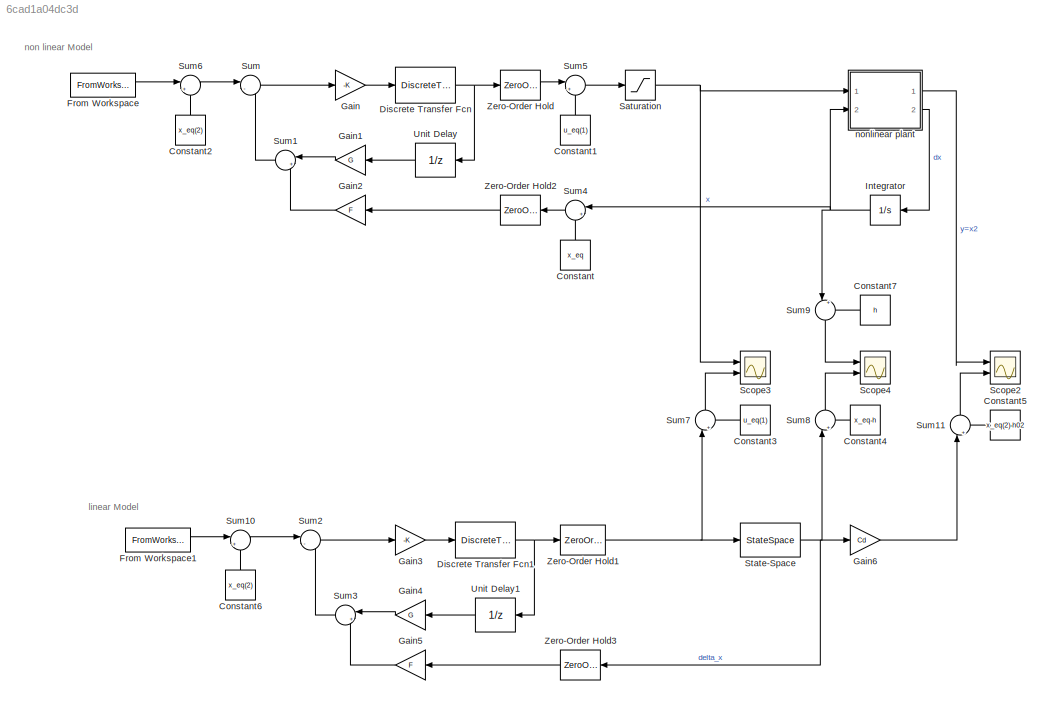
MODEL slx_6cad1a04dc3d
KIND model
CONFIG AbsTol = auto
CONFIG EnableMultiTasking = off
CONFIG FixedStep = auto
CONFIG MaxStep = auto
CONFIG MinStep = auto
CONFIG RelTol = 1e-3
CONFIG SampleTimeConstraint = Unconstrained
CONFIG Solver = VariableStepAuto
CONFIG SolverName = VariableStepAuto
CONFIG StartTime = 0.0
CONFIG StopTime = 50
BLOCK [Constant] Constant
  Value = x_eq
BLOCK [Constant] Constant1
  Value = u_eq(1)
BLOCK [Constant] Constant2
  Value = x_eq(2)
BLOCK [Constant] Constant3
  Value = u_eq(1)
BLOCK [Constant] Constant4
  Value = x_eq-h
BLOCK [Constant] Constant5
  Value = x_eq(2)-h02
BLOCK [Constant] Constant6
  Value = x_eq(2)
BLOCK [Constant] Constant7
  Value = h
BLOCK [DiscreteTransferFcn] Discrete Transfer Fcn
  Denominator = [1 -1]
  InputPortMap = u0
  Numerator = [1 0]
  Ports = [1, 1]
  SampleTime = Ts
BLOCK [DiscreteTransferFcn] Discrete Transfer Fcn1
  Denominator = [1 -1]
  InputPortMap = u0
  Numerator = [1 0]
  Ports = [1, 1]
  SampleTime = Ts
BLOCK [FromWorkspace] From Workspace
  SampleTime = 0
  VariableName = r
  ZeroCross = on
BLOCK [FromWorkspace] From Workspace1
  SampleTime = 0
  VariableName = r
  ZeroCross = on
BLOCK [Gain] Gain
  Gain = -K
  Multiplication = Matrix(K*u)
  OutDataTypeStr = Inherit: Inherit via internal rule
  ParamDataTypeStr = Inherit: Inherit via internal rule
  SaturateOnIntegerOverflow = off
BLOCK [Gain] Gain1
  Gain = G
  Multiplication = Matrix(K*u)
  OutDataTypeStr = Inherit: Inherit via internal rule
  ParamDataTypeStr = Inherit: Inherit via internal rule
  SaturateOnIntegerOverflow = off
BLOCK [Gain] Gain2
  Gain = F
  Multiplication = Matrix(K*u)
  OutDataTypeStr = Inherit: Inherit via internal rule
  ParamDataTypeStr = Inherit: Inherit via internal rule
  SaturateOnIntegerOverflow = off
BLOCK [Gain] Gain3
  Gain = -K
  Multiplication = Matrix(K*u)
  OutDataTypeStr = Inherit: Inherit via internal rule
  ParamDataTypeStr = Inherit: Inherit via internal rule
  SaturateOnIntegerOverflow = off
BLOCK [Gain] Gain4
  Gain = G
  Multiplication = Matrix(K*u)
  OutDataTypeStr = Inherit: Inherit via internal rule
  ParamDataTypeStr = Inherit: Inherit via internal rule
  SaturateOnIntegerOverflow = off
BLOCK [Gain] Gain5
  Gain = F
  Multiplication = Matrix(K*u)
  OutDataTypeStr = Inherit: Inherit via internal rule
  ParamDataTypeStr = Inherit: Inherit via internal rule
  SaturateOnIntegerOverflow = off
BLOCK [Gain] Gain6
  Gain = Cd
  Multiplication = Matrix(K*u)
  OutDataTypeStr = Inherit: Inherit via internal rule
  ParamDataTypeStr = Inherit: Inherit via internal rule
  SaturateOnIntegerOverflow = off
BLOCK [Integrator] Integrator
  InitialCondition = x0_nonlin
  Ports = [1, 1]
BLOCK [Saturate] Saturation
  InputPortMap = u0
  LowerLimit = u_lower_limit
  Ports = [1, 1]
  UpperLimit = u_upper_limit
BLOCK [Scope] Scope2
  Floating = off
  NumInputPorts = 2
  Ports = [2]
  ScopeSpecificationString = Simulink.scopes.TimeScopeBlockCfg('CurrentConfiguration', extmgr.ConfigurationSet(extmgr.Configuration('Core','General UI',true),extmgr.Configuration('Core','Source UI',true),extmgr.Configuration('Sources','WiredSimulink',true,'DataLoggingVariableName','ScopeData1'),extmgr.Configuration('Visuals','Time Domain',true,'SerializedDisplays',{struct('MinYLimReal','3.61123','MaxYLimReal','17.49894','YLab...<+1545ch>
BLOCK [Scope] Scope3
  Floating = off
  NumInputPorts = 2
  Ports = [2]
  ScopeSpecificationString = Simulink.scopes.TimeScopeBlockCfg('CurrentConfiguration', extmgr.ConfigurationSet(extmgr.Configuration('Core','General UI',true),extmgr.Configuration('Core','Source UI',true),extmgr.Configuration('Sources','WiredSimulink',true,'DataLoggingVariableName','ScopeData2'),extmgr.Configuration('Visuals','Time Domain',true,'SerializedDisplays',{struct('MinYLimReal','-8.41092','MaxYLimReal','19.15945','YLa...<+1521ch>
BLOCK [Scope] Scope4
  Floating = off
  NumInputPorts = 2
  Ports = [2]
  ScopeSpecificationString = Simulink.scopes.TimeScopeBlockCfg('CurrentConfiguration', extmgr.ConfigurationSet(extmgr.Configuration('Core','General UI',true),extmgr.Configuration('Core','Source UI',true),extmgr.Configuration('Sources','WiredSimulink',true,'DataLoggingVariableName','ScopeData3'),extmgr.Configuration('Visuals','Time Domain',true,'SerializedDisplays',{struct('MinYLimReal','14.9587','MaxYLimReal','15.01916','YLab...<+1674ch>
BLOCK [StateSpace] State-Space
  A = A
  B = B
  C = eye(n)
  D = [0;0]
  InitialCondition = x0_linear
  Ports = [1, 1]
BLOCK [Sum] Sum
  IconShape = round
  InputSameDT = off
  Inputs = |-+
  OutDataTypeStr = Inherit: Inherit via internal rule
  Ports = [2, 1]
  SaturateOnIntegerOverflow = off
BLOCK [Sum] Sum1
  IconShape = round
  InputSameDT = off
  Inputs = |++
  OutDataTypeStr = Inherit: Inherit via internal rule
  Ports = [2, 1]
  SaturateOnIntegerOverflow = off
BLOCK [Sum] Sum10
  IconShape = round
  InputSameDT = off
  Inputs = |+-
  OutDataTypeStr = Inherit: Inherit via internal rule
  Ports = [2, 1]
  SaturateOnIntegerOverflow = off
BLOCK [Sum] Sum11
  IconShape = round
  InputSameDT = off
  Inputs = |++
  OutDataTypeStr = Inherit: Inherit via internal rule
  Ports = [2, 1]
  SaturateOnIntegerOverflow = off
BLOCK [Sum] Sum2
  IconShape = round
  InputSameDT = off
  Inputs = |-+
  OutDataTypeStr = Inherit: Inherit via internal rule
  Ports = [2, 1]
  SaturateOnIntegerOverflow = off
BLOCK [Sum] Sum3
  IconShape = round
  InputSameDT = off
  Inputs = |++
  OutDataTypeStr = Inherit: Inherit via internal rule
  Ports = [2, 1]
  SaturateOnIntegerOverflow = off
BLOCK [Sum] Sum4
  IconShape = round
  InputSameDT = off
  Inputs = |+-
  OutDataTypeStr = Inherit: Inherit via internal rule
  Ports = [2, 1]
  SaturateOnIntegerOverflow = off
BLOCK [Sum] Sum5
  IconShape = round
  InputSameDT = off
  Inputs = |++
  OutDataTypeStr = Inherit: Inherit via internal rule
  Ports = [2, 1]
  SaturateOnIntegerOverflow = off
BLOCK [Sum] Sum6
  IconShape = round
  InputSameDT = off
  Inputs = |+-
  OutDataTypeStr = Inherit: Inherit via internal rule
  Ports = [2, 1]
  SaturateOnIntegerOverflow = off
BLOCK [Sum] Sum7
  IconShape = round
  InputSameDT = off
  Inputs = |++
  OutDataTypeStr = Inherit: Inherit via internal rule
  Ports = [2, 1]
  SaturateOnIntegerOverflow = off
BLOCK [Sum] Sum8
  IconShape = round
  InputSameDT = off
  Inputs = |++
  OutDataTypeStr = Inherit: Inherit via internal rule
  Ports = [2, 1]
  SaturateOnIntegerOverflow = off
BLOCK [Sum] Sum9
  IconShape = round
  InputSameDT = off
  Inputs = |+-
  OutDataTypeStr = Inherit: Inherit via internal rule
  Ports = [2, 1]
  SaturateOnIntegerOverflow = off
BLOCK [UnitDelay] Unit Delay
  InputProcessing = Elements as channels (sample based)
  SampleTime = Ts
BLOCK [UnitDelay] Unit Delay1
  InputProcessing = Elements as channels (sample based)
  SampleTime = Ts
BLOCK [ZeroOrderHold] Zero-Order Hold
  SampleTime = Ts
BLOCK [ZeroOrderHold] Zero-Order Hold1
  SampleTime = Ts
BLOCK [ZeroOrderHold] Zero-Order Hold2
  SampleTime = Ts
BLOCK [ZeroOrderHold] Zero-Order Hold3
  SampleTime = Ts
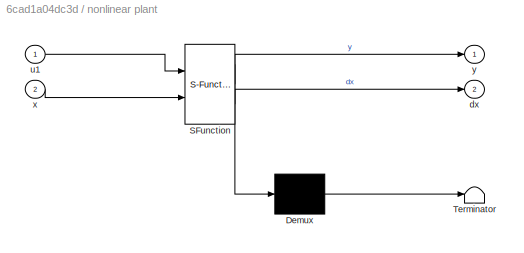
BLOCK [SubSystem] nonlinear plant
  ErrorFcn = Stateflow.Translate.translate
  PermitHierarchicalResolution = ExplicitOnly
  Ports = [2, 2]
  RequestExecContextInheritance = off
  SFBlockType = MATLAB Function
  TreatAsAtomicUnit = on
BLOCK [Demux] nonlinear plant/ Demux 
  Outputs = 1
  Ports = [1, 1]
BLOCK [S-Function] nonlinear plant/ SFunction 
  EnableBusSupport = on
  FunctionName = sf_sfun
  Parameters = alpha,beta,gamma,h,k
  PortCounts = [2 3]
  Ports = [2, 3]
  SFcnIsStateOwnerBlock = off
  SFunctionDeploymentMode = off
  Tag = Stateflow S-Function task4_lin_nonlin_model_MPC_simu 2
BLOCK [Terminator] nonlinear plant/ Terminator 
BLOCK [Outport] nonlinear plant/dx
  IconDisplay = Port number
  Port = 2
BLOCK [Inport] nonlinear plant/u1
  IconDisplay = Port number
BLOCK [Inport] nonlinear plant/x
  IconDisplay = Port number
  Port = 2
BLOCK [Outport] nonlinear plant/y
  IconDisplay = Port number
ANNOTATION (root): linear Model
ANNOTATION (root): non linear Model
LINE Constant1:1 -> Sum5:2
LINE Constant2:1 -> Sum6:2
LINE Constant3:1 -> Sum7:2
LINE Constant4:1 -> Sum8:2
LINE Constant5:1 -> Sum11:2
LINE Constant6:1 -> Sum10:2
LINE Constant7:1 -> Sum9:2
LINE Constant:1 -> Sum4:2
NET Discrete Transfer Fcn1:1 -> Unit Delay1:1, Zero-Order Hold1:1
NET Discrete Transfer Fcn:1 -> Unit Delay:1, Zero-Order Hold:1
LINE From Workspace1:1 -> Sum10:1
LINE From Workspace:1 -> Sum6:1
LINE Gain1:1 -> Sum1:1
LINE Gain2:1 -> Sum1:2
LINE Gain3:1 -> Discrete Transfer Fcn1:1
LINE Gain4:1 -> Sum3:1
LINE Gain5:1 -> Sum3:2
LINE Gain6:1 -> Sum11:1
LINE Gain:1 -> Discrete Transfer Fcn:1
NET Integrator:1 -> Sum4:1, Sum9:1, nonlinear plant:2
NET Saturation:1 -> Scope3:1, nonlinear plant:1
NET State-Space:1 -> Gain6:1, Sum8:1, Zero-Order Hold3:1
LINE Sum10:1 -> Sum2:1
LINE Sum11:1 -> Scope2:2
LINE Sum1:1 -> Sum:2
LINE Sum2:1 -> Gain3:1
LINE Sum3:1 -> Sum2:2
LINE Sum4:1 -> Zero-Order Hold2:1
LINE Sum5:1 -> Saturation:1
LINE Sum6:1 -> Sum:1
LINE Sum7:1 -> Scope3:2
LINE Sum8:1 -> Scope4:2
LINE Sum9:1 -> Scope4:1
LINE Sum:1 -> Gain:1
LINE Unit Delay1:1 -> Gain4:1
LINE Unit Delay:1 -> Gain1:1
NET Zero-Order Hold1:1 -> State-Space:1, Sum7:1
LINE Zero-Order Hold2:1 -> Gain2:1
LINE Zero-Order Hold3:1 -> Gain5:1
LINE Zero-Order Hold:1 -> Sum5:1
LINE nonlinear plant:1 -> Scope2:1
LINE nonlinear plant:2 -> Integrator:1
note: NET lines group one-source signal fan-out (src -> all destinations, sorted); 1:1 wires keep LINE
CHART nonlinear plant states=1 transitions=1
  STATE_LABEL 'eML_blk_kernel()'
  STATE_LABEL 'SCRIPT:\nfunction [y, dx]= fcn(u1,x,k,alpha, beta, gamma,h)\n    \n    % calculate input quantity\n    if (beta(1)+gamma(1)*u1) <= 0\n        zp1 = 0;\n    else\n        zp1 = alpha(1) + sqrt( beta(1)+gamma(1)*u1 );\n    end\n    \n    % nonlinear plant description\n   dx1 = -k(1)*sqrt(x(1)) + zp1;\n   dx2 = -k(2)*sqrt(x(2)) + k(1)*sqrt(x(1));\n   \n   dx = [dx1; dx2];\n   y = x(2)-h(2);\n\nend\n'
